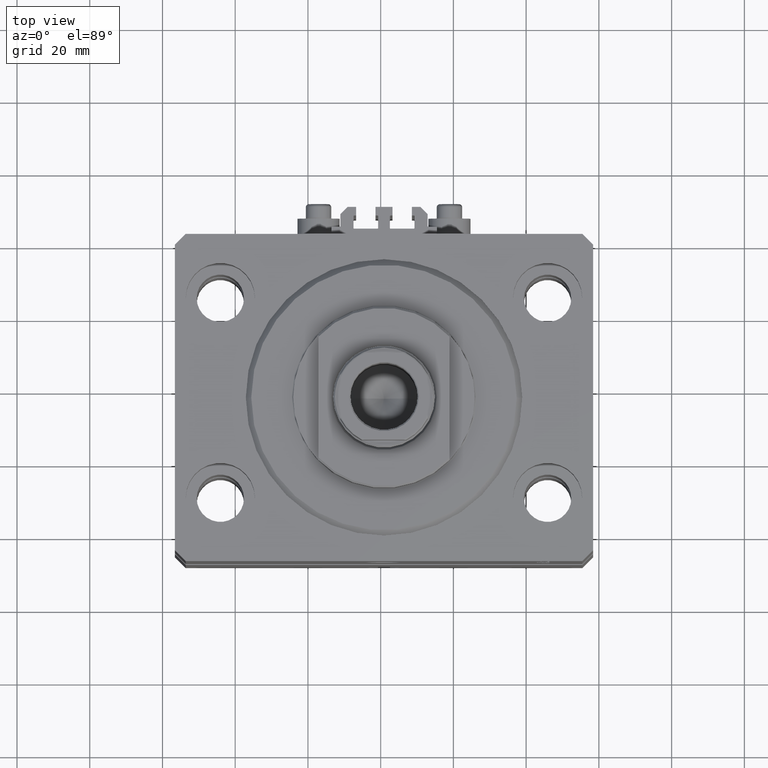
[diagram: clean part render]
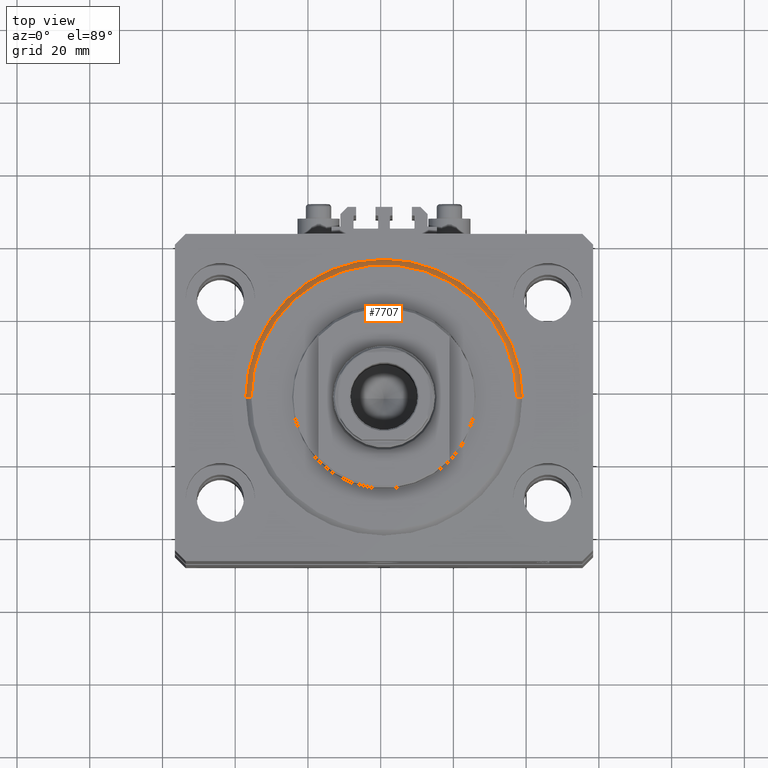
[diagram: same view with one face highlighted and labeled with its STEP entity id]
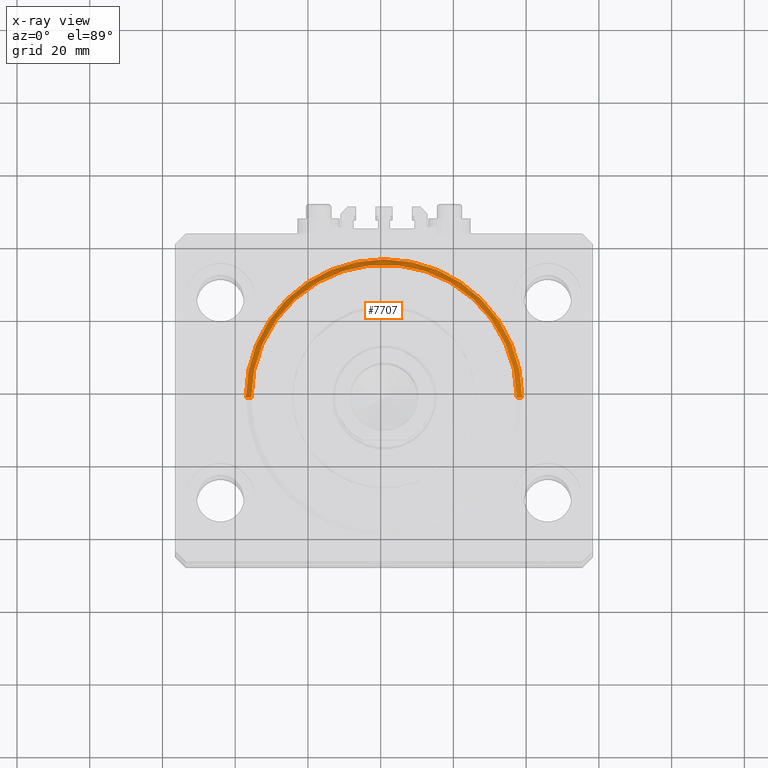
[diagram: x-ray of the same camera — body ghosted, the highlighted face saturated]
A machine part, top view. The second image highlights one B-rep face of the part: STEP entity #7707.
The next image is the same camera in x-ray: the body ghosted, the highlighted face saturated — about 0% of this face is hidden behind the body in this view.
In plain terms, the highlighted conical surface has half-angle 45 deg.
Its self-contained STEP definition (entity closure, byte-faithful):
#477 = DIRECTION ( 'NONE',  ( 1.000000000000000000, 0.000000000000000000, 0.000000000000000000 ) ) ;
#725 = DIRECTION ( 'NONE',  ( 0.7071067811865491270, 0.000000000000000000, 0.7071067811865459074 ) ) ;
#3063 = VERTEX_POINT ( 'NONE', #4056 ) ;
#3962 = EDGE_CURVE ( 'NONE', #34989, #6836, #32354, .T. ) ;
#4056 = CARTESIAN_POINT ( 'NONE',  ( -38.00000000000000000, 0.000000000000000000, 1.499999999999994449 ) ) ;
#6384 = ORIENTED_EDGE ( 'NONE', *, *, #14863, .T. ) ;
#6836 = VERTEX_POINT ( 'NONE', #33051 ) ;
#7306 = DIRECTION ( 'NONE',  ( 1.000000000000000000, 0.000000000000000000, 0.000000000000000000 ) ) ;
#7707 = ADVANCED_FACE ( 'NONE', ( #11918 ), #48379, .T. ) ;
#10309 = CARTESIAN_POINT ( 'NONE',  ( 0.000000000000000000, 0.000000000000000000, 0.000000000000000000 ) ) ;
#11918 = FACE_OUTER_BOUND ( 'NONE', #18260, .T. ) ;
#14141 = CARTESIAN_POINT ( 'NONE',  ( -36.50000000000000000, 4.561809326823889791E-15, 0.000000000000000000 ) ) ;
#14863 = EDGE_CURVE ( 'NONE', #34989, #3063, #21059, .T. ) ;
#17491 = CARTESIAN_POINT ( 'NONE',  ( 38.00000000000000000, 4.653657836759941941E-15, 1.499999999999994449 ) ) ;
#18260 = EDGE_LOOP ( 'NONE', ( #30286, #6384, #43808, #31038 ) ) ;
#19632 = CARTESIAN_POINT ( 'NONE',  ( 38.00000000000000000, 0.000000000000000000, 1.499999999999994449 ) ) ;
#19862 = DIRECTION ( 'NONE',  ( -0.000000000000000000, -0.000000000000000000, 1.000000000000000000 ) ) ;
#20570 = DIRECTION ( 'NONE',  ( -0.7071067811865491270, 8.659560562354953812E-17, 0.7071067811865459074 ) ) ;
#21059 = LINE ( 'NONE', #43216, #32568 ) ;
#23356 = LINE ( 'NONE', #19632, #36980 ) ;
#23590 = DIRECTION ( 'NONE',  ( 1.000000000000000000, 0.000000000000000000, 0.000000000000000000 ) ) ;
#27561 = CARTESIAN_POINT ( 'NONE',  ( 0.000000000000000000, 0.000000000000000000, 1.499999999999994449 ) ) ;
#28186 = VERTEX_POINT ( 'NONE', #17491 ) ;
#30286 = ORIENTED_EDGE ( 'NONE', *, *, #3962, .F. ) ;
#30329 = CARTESIAN_POINT ( 'NONE',  ( 0.000000000000000000, 0.000000000000000000, 1.499999999999994449 ) ) ;
#31038 = ORIENTED_EDGE ( 'NONE', *, *, #43675, .F. ) ;
#32354 = CIRCLE ( 'NONE', #38732, 36.50000000000000000 ) ;
#32568 = VECTOR ( 'NONE', #20570, 1000.000000000000114 ) ;
#33051 = CARTESIAN_POINT ( 'NONE',  ( 36.50000000000000000, 0.000000000000000000, 0.000000000000000000 ) ) ;
#33914 = DIRECTION ( 'NONE',  ( -0.000000000000000000, -0.000000000000000000, -1.000000000000000000 ) ) ;
#34989 = VERTEX_POINT ( 'NONE', #14141 ) ;
#35045 = DIRECTION ( 'NONE',  ( -0.000000000000000000, -0.000000000000000000, 1.000000000000000000 ) ) ;
#36980 = VECTOR ( 'NONE', #725, 1000.000000000000114 ) ;
#37250 = CIRCLE ( 'NONE', #40405, 38.00000000000000000 ) ;
#38732 = AXIS2_PLACEMENT_3D ( 'NONE', #10309, #33914, #7306 ) ;
#40405 = AXIS2_PLACEMENT_3D ( 'NONE', #27561, #19862, #23590 ) ;
#40436 = AXIS2_PLACEMENT_3D ( 'NONE', #30329, #35045, #477 ) ;
#42758 = EDGE_CURVE ( 'NONE', #28186, #3063, #37250, .T. ) ;
#43216 = CARTESIAN_POINT ( 'NONE',  ( -38.00000000000000000, 4.653657836759941941E-15, 1.499999999999994449 ) ) ;
#43675 = EDGE_CURVE ( 'NONE', #6836, #28186, #23356, .T. ) ;
#43808 = ORIENTED_EDGE ( 'NONE', *, *, #42758, .F. ) ;
#48379 = CONICAL_SURFACE ( 'NONE', #40436, 38.00000000000000000, 0.7853981633974506105 ) ;